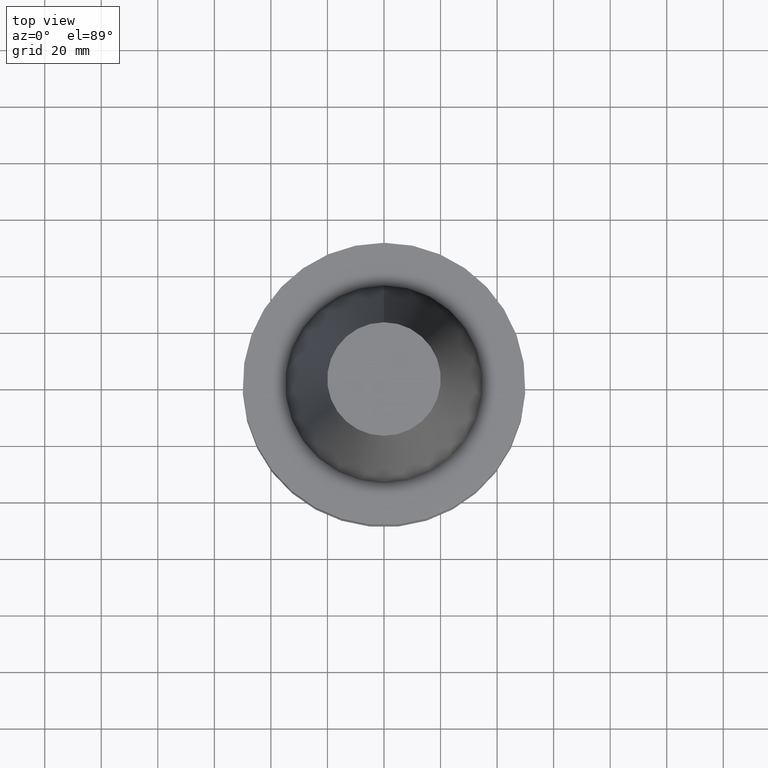
[diagram: clean part render]
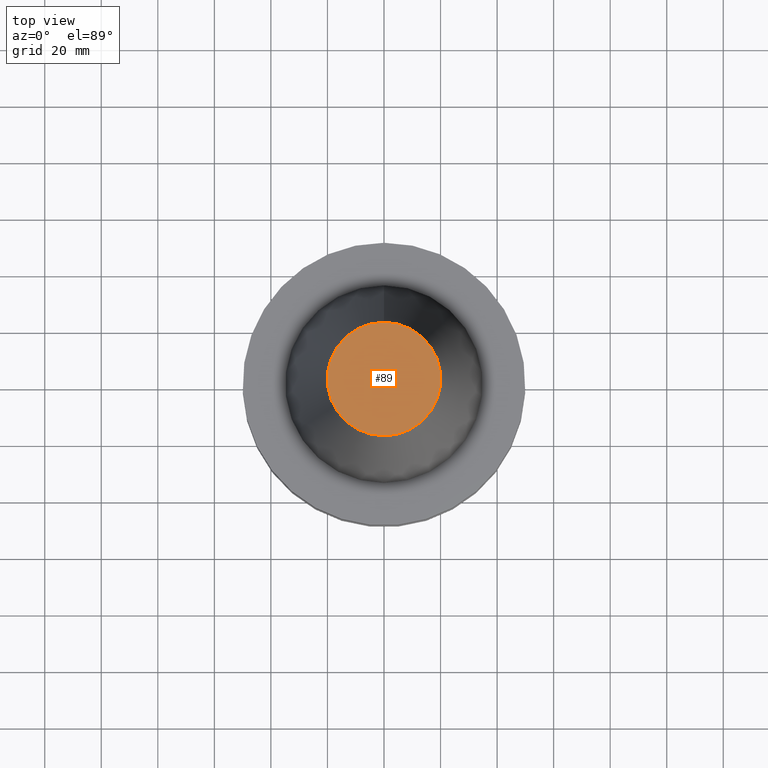
[diagram: same view with one face highlighted and labeled with its STEP entity id]
A machine part, top view. The second image highlights one B-rep face of the part: STEP entity #89.
In plain terms, the highlighted planar face has unit normal (-0, -0, 1).
Its self-contained STEP definition (entity closure, byte-faithful):
#89=ADVANCED_FACE('',(#132),#133,.T.);
#132=FACE_OUTER_BOUND('',#175,.T.);
#133=PLANE('',#176);
#175=EDGE_LOOP('',(#246));
#176=AXIS2_PLACEMENT_3D('',#247,#248,#249);
#246=ORIENTED_EDGE('',*,*,#263,.T.);
#247=CARTESIAN_POINT('',(-6.23345220766003E-015,10.0395833333333,101.8));
#248=DIRECTION('',(-6.12323399573677E-017,-1.22464679914735E-016,1.0));
#249=DIRECTION('',(-1.23259516440783E-032,1.0,1.22464679914735E-016));
#263=EDGE_CURVE('',#290,#290,#291,.T.);
#290=VERTEX_POINT('',#318);
#291=CIRCLE('',#319,20.0791666666668);
#318=CARTESIAN_POINT('',(-6.23345220766003E-015,20.0791666666667,101.8));
#319=AXIS2_PLACEMENT_3D('',#359,#360,#361);
#359=CARTESIAN_POINT('',(-6.23345220766003E-015,-8.32419501191592E-014,101.8));
#360=DIRECTION('',(-6.12323399573676E-017,-4.47418976075613E-016,1.0));
#361=DIRECTION('',(-3.22236635772083E-032,1.0,4.47418976075613E-016));